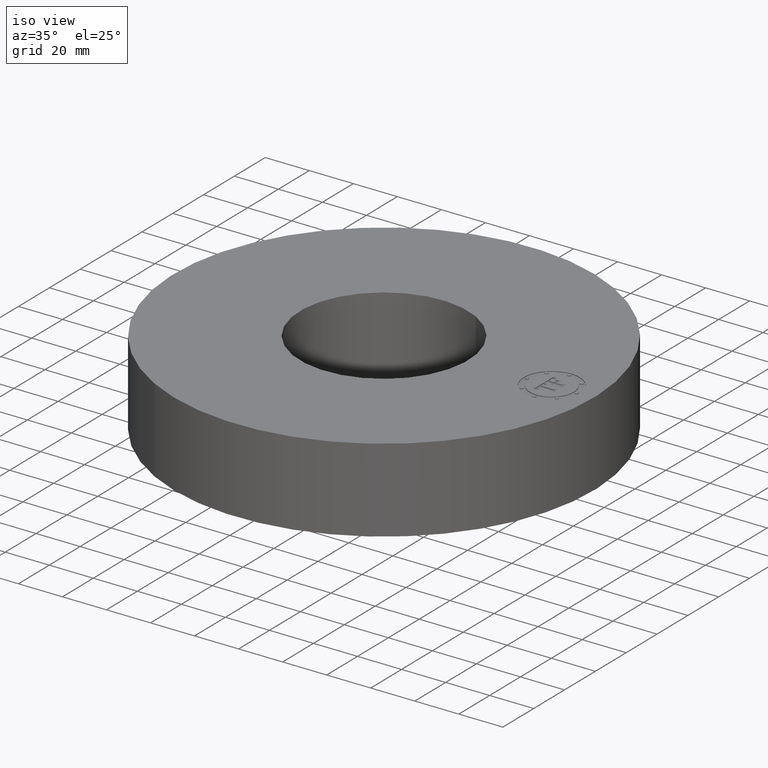
[diagram: clean part render]
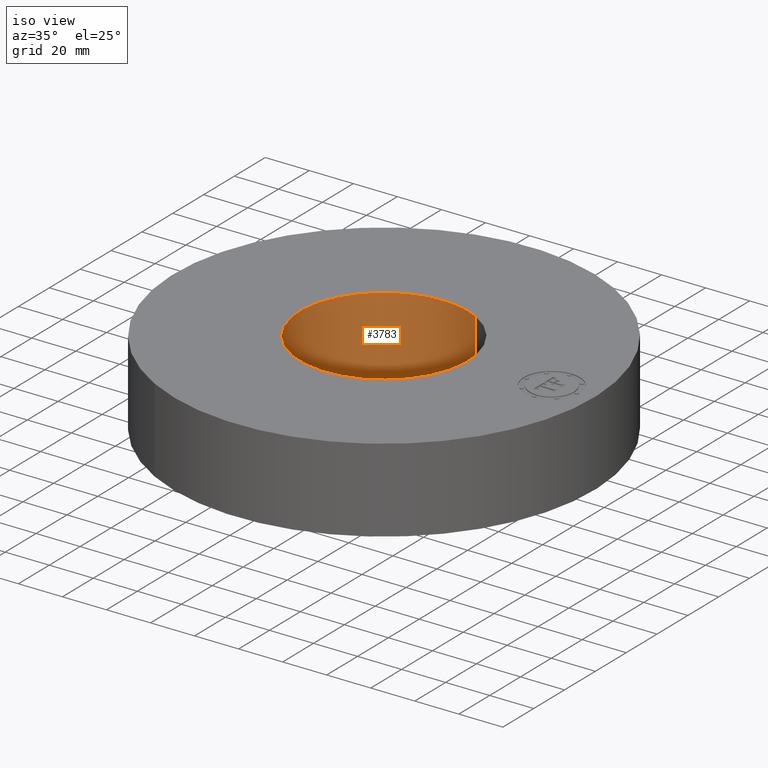
[diagram: same view with one face highlighted and labeled with its STEP entity id]
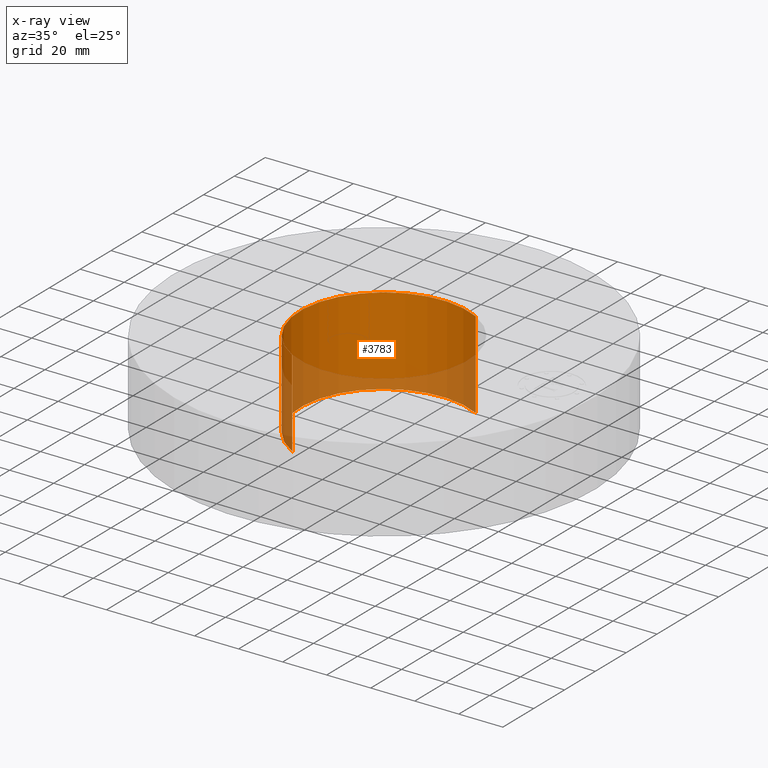
[diagram: x-ray of the same camera — body ghosted, the highlighted face saturated]
A machine part, iso view. The second image highlights one B-rep face of the part: STEP entity #3783.
The next image is the same camera in x-ray: the body ghosted, the highlighted face saturated — about 27% of this face is hidden behind the body in this view.
In plain terms, the highlighted cylindrical surface (partial cylindrical patch) has radius 38.1 mm, axis along (0, 0, -1).
Its self-contained STEP definition (entity closure, byte-faithful):
#3733=AXIS2_PLACEMENT_3D('Circle Axis2P3D',#3731,#3732,$) ;
#3744=AXIS2_PLACEMENT_3D('Cylinder Axis2P3D',#3741,#3742,#3743) ;
#3774=AXIS2_PLACEMENT_3D('Circle Axis2P3D',#3772,#3773,$) ;
#3726=CARTESIAN_POINT('Vertex',(0.719138307909,1.31637384284,-0.0625000000003)) ;
#3728=CARTESIAN_POINT('Vertex',(-0.719138307909,-1.31637384284,-0.0625000000003)) ;
#3731=CARTESIAN_POINT('Axis2P3D Location',(0.,0.,-0.0625000000003)) ;
#3741=CARTESIAN_POINT('Axis2P3D Location',(0.,0.,0.718750000003)) ;
#3750=CARTESIAN_POINT('Vertex',(0.719138307909,1.31637384284,1.50000000001)) ;
#3752=CARTESIAN_POINT('Vertex',(-0.719138307909,-1.31637384284,1.50000000001)) ;
#3755=CARTESIAN_POINT('Line Origine',(0.719138307909,1.31637384284,0.718750000003)) ;
#3760=CARTESIAN_POINT('Line Origine',(-0.719138307909,-1.31637384284,0.718750000003)) ;
#3772=CARTESIAN_POINT('Axis2P3D Location',(0.,0.,1.50000000001)) ;
#3732=DIRECTION('Axis2P3D Direction',(0.,0.,-0.0393700787402)) ;
#3742=DIRECTION('Axis2P3D Direction',(0.,0.,-0.0393700787402)) ;
#3743=DIRECTION('Axis2P3D XDirection',(-0.0188750212049,-0.0345504945626,0.)) ;
#3756=DIRECTION('Vector Direction',(0.,0.,-0.0393700787402)) ;
#3761=DIRECTION('Vector Direction',(0.,0.,-0.0393700787402)) ;
#3773=DIRECTION('Axis2P3D Direction',(0.,0.,-0.0393700787402)) ;
#3757=VECTOR('Line Direction',#3756,0.0393700787402) ;
#3762=VECTOR('Line Direction',#3761,0.0393700787402) ;
#3778=ORIENTED_EDGE('',*,*,#3776,.F.) ;
#3779=ORIENTED_EDGE('',*,*,#3764,.T.) ;
#3780=ORIENTED_EDGE('',*,*,#3735,.T.) ;
#3781=ORIENTED_EDGE('',*,*,#3759,.F.) ;
#3783=ADVANCED_FACE('PartBody',(#3782),#3745,.F.) ;
#3734=CIRCLE('generated circle',#3733,1.50000000001) ;
#3775=CIRCLE('generated circle',#3774,1.50000000001) ;
#3745=CYLINDRICAL_SURFACE('generated cylinder',#3744,1.50000000001) ;
#3735=EDGE_CURVE('',#3729,#3727,#3734,.T.) ;
#3759=EDGE_CURVE('',#3751,#3727,#3758,.T.) ;
#3764=EDGE_CURVE('',#3753,#3729,#3763,.T.) ;
#3776=EDGE_CURVE('',#3753,#3751,#3775,.T.) ;
#3777=EDGE_LOOP('',(#3778,#3779,#3780,#3781)) ;
#3782=FACE_OUTER_BOUND('',#3777,.T.) ;
#3758=LINE('Line',#3755,#3757) ;
#3763=LINE('Line',#3760,#3762) ;
#3727=VERTEX_POINT('',#3726) ;
#3729=VERTEX_POINT('',#3728) ;
#3751=VERTEX_POINT('',#3750) ;
#3753=VERTEX_POINT('',#3752) ;